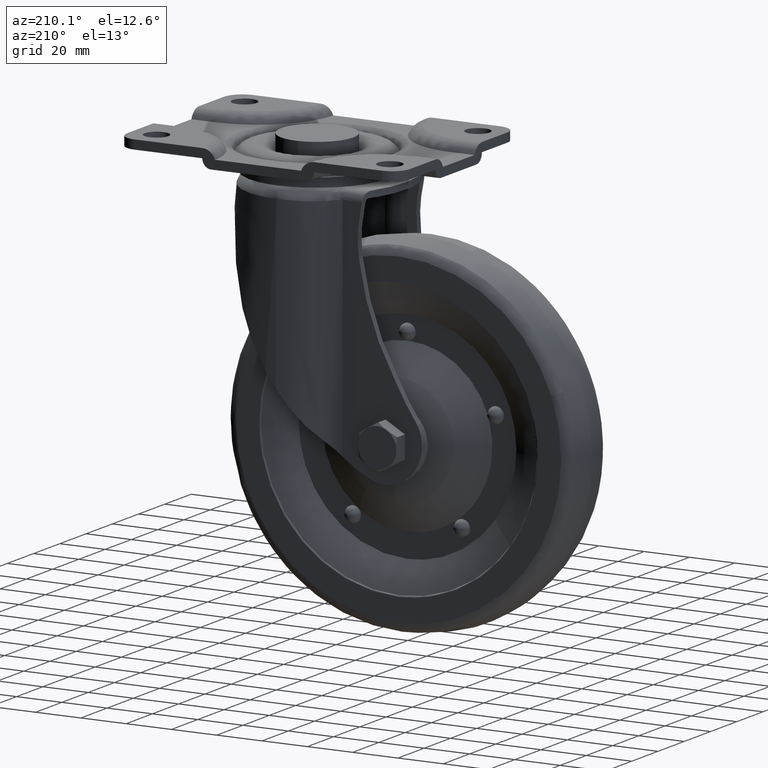
[diagram: clean part render]
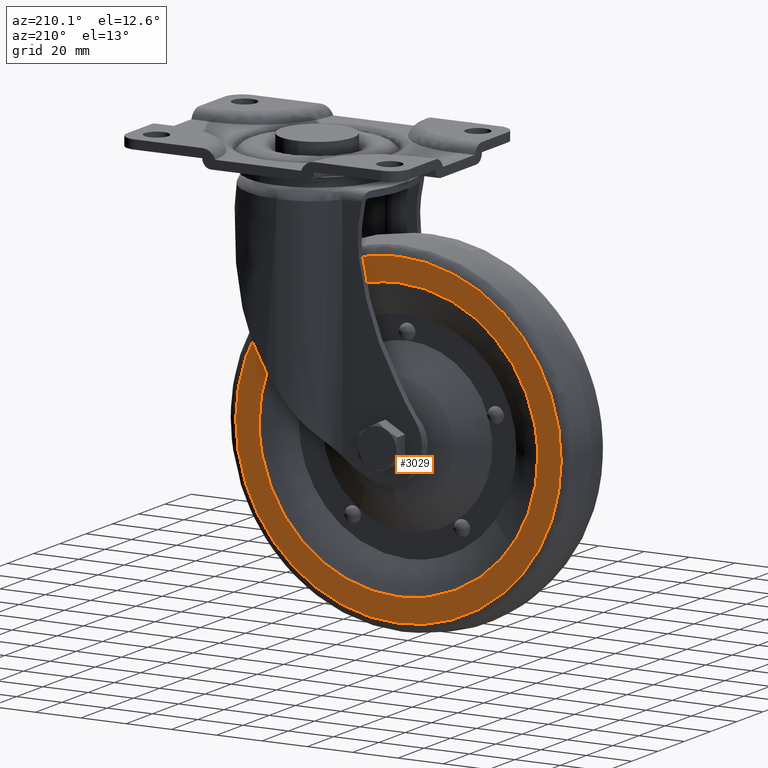
[diagram: same view with one face highlighted and labeled with its STEP entity id]
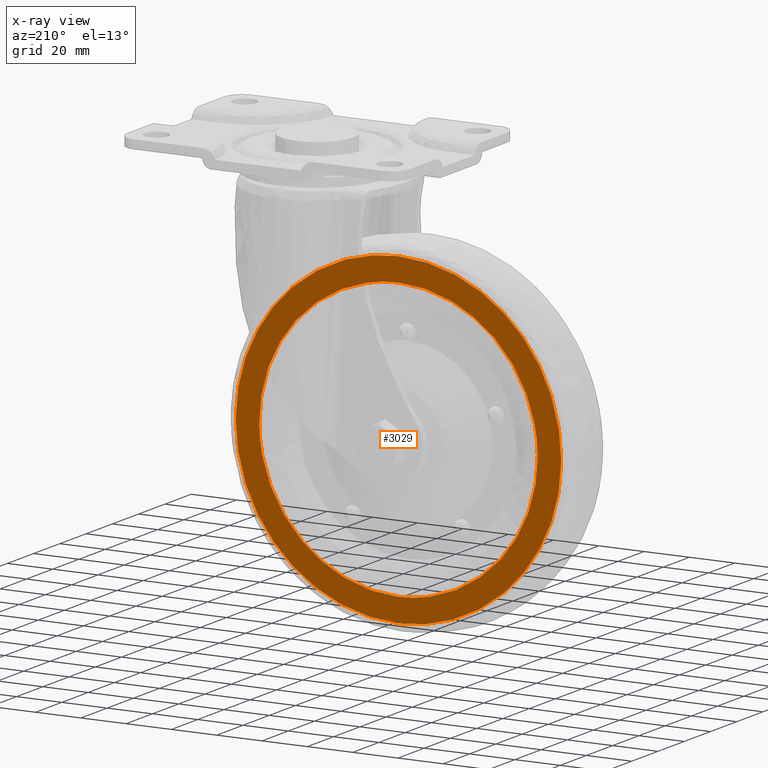
[diagram: x-ray of the same camera — body ghosted, the highlighted face saturated]
A machine part, auxiliary view. The second image highlights one B-rep face of the part: STEP entity #3029.
The next image is the same camera in x-ray: the body ghosted, the highlighted face saturated — about 0% of this face is hidden behind the body in this view.
In plain terms, the highlighted face is a freeform B-spline surface patch.
Its self-contained STEP definition (entity closure, byte-faithful):
#2828=CARTESIAN_POINT('',(17.495144199788200,14.0,-113.272811452859900));
#2829=VERTEX_POINT('',#2828);
#2843=CARTESIAN_POINT('',(-44.0,14.0,-174.0));
#2844=VERTEX_POINT('',#2843);
#2845=CARTESIAN_POINT('',(-44.0,14.0,-174.0));
#2846=CARTESIAN_POINT('',(16.731983679662374,14.000000000000002,-173.999999999882310));
#2847=CARTESIAN_POINT('',(17.495144199788196,13.999999999999996,-113.272811452859900));
#2855=(BOUNDED_CURVE()B_SPLINE_CURVE(2,(#2845,#2846,#2847),.UNSPECIFIED.,.F.,.U.)B_SPLINE_CURVE_WITH_KNOTS((3,3),(0.0,0.247784295920958),.UNSPECIFIED.)CURVE()GEOMETRIC_REPRESENTATION_ITEM()RATIONAL_B_SPLINE_CURVE((1.0,0.709702639985142,0.994854295642240))REPRESENTATION_ITEM(''));
#2856=EDGE_CURVE('',#2844,#2829,#2855,.T.);
#2858=CARTESIAN_POINT('',(-105.495144199788200,14.0,-111.727188547140100));
#2859=VERTEX_POINT('',#2858);
#2860=CARTESIAN_POINT('',(-105.495144199788230,14.000000000000005,-111.727188547140160));
#2861=CARTESIAN_POINT('',(-105.499999981315010,14.000000000000004,-112.113579018598940));
#2862=CARTESIAN_POINT('',(-105.499999981373900,14.0,-112.500000000234000));
#2863=CARTESIAN_POINT('',(-105.499999990745490,13.999999999999998,-174.000000000116300));
#2864=CARTESIAN_POINT('',(-44.0,14.0,-174.0));
#2872=(BOUNDED_CURVE()B_SPLINE_CURVE(2,(#2860,#2861,#2862,#2863,#2864),.UNSPECIFIED.,.F.,.U.)B_SPLINE_CURVE_WITH_KNOTS((3,2,3),(0.747784295920958,0.750000000000000,1.0),.UNSPECIFIED.)CURVE()GEOMETRIC_REPRESENTATION_ITEM()RATIONAL_B_SPLINE_CURVE((0.994854295642240,0.997404141201406,1.0,0.707106781186548,1.0))REPRESENTATION_ITEM(''));
#2873=EDGE_CURVE('',#2859,#2844,#2872,.T.);
#2916=CARTESIAN_POINT('',(-44.0,14.0,-51.000000000000007));
#2917=VERTEX_POINT('',#2916);
#2918=CARTESIAN_POINT('',(-44.0,14.0,-51.000000000000007));
#2919=CARTESIAN_POINT('',(-104.731983679662410,14.0,-51.000000000117751));
#2920=CARTESIAN_POINT('',(-105.495144199788230,14.000000000000005,-111.727188547140160));
#2928=(BOUNDED_CURVE()B_SPLINE_CURVE(2,(#2918,#2919,#2920),.UNSPECIFIED.,.F.,.U.)B_SPLINE_CURVE_WITH_KNOTS((3,3),(0.500000000000000,0.747784295920958),.UNSPECIFIED.)CURVE()GEOMETRIC_REPRESENTATION_ITEM()RATIONAL_B_SPLINE_CURVE((1.0,0.709702639985142,0.994854295642240))REPRESENTATION_ITEM(''));
#2929=EDGE_CURVE('',#2917,#2859,#2928,.T.);
#2931=CARTESIAN_POINT('',(17.495144199788196,13.999999999999996,-113.272811452859900));
#2932=CARTESIAN_POINT('',(17.499999981315050,14.000000000000005,-112.886420981401020));
#2933=CARTESIAN_POINT('',(17.499999981373929,14.0,-112.499999999765900));
#2934=CARTESIAN_POINT('',(17.499999990745483,14.000000000000002,-50.999999999883705));
#2935=CARTESIAN_POINT('',(-44.0,14.0,-51.000000000000007));
#2943=(BOUNDED_CURVE()B_SPLINE_CURVE(2,(#2931,#2932,#2933,#2934,#2935),.UNSPECIFIED.,.F.,.U.)B_SPLINE_CURVE_WITH_KNOTS((3,2,3),(0.247784295920958,0.250000000000000,0.500000000000000),.UNSPECIFIED.)CURVE()GEOMETRIC_REPRESENTATION_ITEM()RATIONAL_B_SPLINE_CURVE((0.994854295642240,0.997404141201405,1.0,0.707106781186548,1.0))REPRESENTATION_ITEM(''));
#2944=EDGE_CURVE('',#2829,#2917,#2943,.T.);
#2952=CARTESIAN_POINT('',(-122.980905380348500,14.0,-191.519897093825900));
#2953=CARTESIAN_POINT('',(-122.980905380348500,14.0,-33.480099052225967));
#2954=CARTESIAN_POINT('',(34.980909232240109,14.0,-191.519897093825900));
#2955=CARTESIAN_POINT('',(34.980909232240109,14.0,-33.480099052225981));
#2956=B_SPLINE_SURFACE_WITH_KNOTS('',1,1,((#2952,#2954),(#2953,#2955)),.UNSPECIFIED.,.F.,.F.,.U.,(2,2),(2,2),(0.0,158.039798041599910),(0.0,157.961814612588600),.UNSPECIFIED.);
#2957=CARTESIAN_POINT('',(-111.441270215077790,14.0,-87.739886874917715));
#2958=VERTEX_POINT('',#2957);
#2959=CARTESIAN_POINT('',(-44.0,14.0,-184.342801502242390));
#2960=VERTEX_POINT('',#2959);
#2961=CARTESIAN_POINT('',(-111.441270215077760,13.999999999999995,-87.739886874917715));
#2962=CARTESIAN_POINT('',(-115.842801517558390,14.000000000000004,-99.728719902807114));
#2963=CARTESIAN_POINT('',(-115.842801516107000,14.0,-112.499999994909800));
#2964=CARTESIAN_POINT('',(-115.842801507942350,13.999999999999998,-184.342801500149790));
#2965=CARTESIAN_POINT('',(-44.0,14.0,-184.342801502242390));
#2973=(BOUNDED_CURVE()B_SPLINE_CURVE(2,(#2961,#2962,#2963,#2964,#2965),.UNSPECIFIED.,.F.,.U.)B_SPLINE_CURVE_WITH_KNOTS((3,2,3),(0.691460350202081,0.750000000000000,1.0),.UNSPECIFIED.)CURVE()GEOMETRIC_REPRESENTATION_ITEM()RATIONAL_B_SPLINE_CURVE((0.894951884912775,0.931416534169901,1.0,0.707106781186548,1.0))REPRESENTATION_ITEM(''));
#2974=EDGE_CURVE('',#2958,#2960,#2973,.T.);
#2975=ORIENTED_EDGE('',*,*,#2974,.F.);
#2976=CARTESIAN_POINT('',(-44.0,14.0,-40.657198497757612));
#2977=VERTEX_POINT('',#2976);
#2978=CARTESIAN_POINT('',(-44.0,14.0,-40.657198497757612));
#2979=CARTESIAN_POINT('',(-94.155523854833177,13.999999999999998,-40.657198494760088));
#2980=CARTESIAN_POINT('',(-111.441270215077760,13.999999999999995,-87.739886874917715));
#2988=(BOUNDED_CURVE()B_SPLINE_CURVE(2,(#2978,#2979,#2980),.UNSPECIFIED.,.F.,.U.)B_SPLINE_CURVE_WITH_KNOTS((3,3),(0.500000000000000,0.691460350202081),.UNSPECIFIED.)CURVE()GEOMETRIC_REPRESENTATION_ITEM()RATIONAL_B_SPLINE_CURVE((1.0,0.775690247016646,0.894951884912775))REPRESENTATION_ITEM(''));
#2989=EDGE_CURVE('',#2977,#2958,#2988,.T.);
#2990=ORIENTED_EDGE('',*,*,#2989,.F.);
#2991=CARTESIAN_POINT('',(23.441270215077768,14.0,-137.260113125082310));
#2992=VERTEX_POINT('',#2991);
#2993=CARTESIAN_POINT('',(23.441270215077761,13.999999999999996,-137.260113125082230));
#2994=CARTESIAN_POINT('',(27.842801517558343,13.999999999999991,-125.271280097192870));
#2995=CARTESIAN_POINT('',(27.842801516106949,14.0,-112.500000005090200));
#2996=CARTESIAN_POINT('',(27.842801507942337,13.999999999999998,-40.657198499850267));
#2997=CARTESIAN_POINT('',(-44.0,14.0,-40.657198497757612));
#3005=(BOUNDED_CURVE()B_SPLINE_CURVE(2,(#2993,#2994,#2995,#2996,#2997),.UNSPECIFIED.,.F.,.U.)B_SPLINE_CURVE_WITH_KNOTS((3,2,3),(0.191460350202081,0.250000000000000,0.500000000000000),.UNSPECIFIED.)CURVE()GEOMETRIC_REPRESENTATION_ITEM()RATIONAL_B_SPLINE_CURVE((0.894951884912774,0.931416534169901,1.0,0.707106781186548,1.0))REPRESENTATION_ITEM(''));
#3006=EDGE_CURVE('',#2992,#2977,#3005,.T.);
#3007=ORIENTED_EDGE('',*,*,#3006,.F.);
#3008=CARTESIAN_POINT('',(-44.0,14.0,-184.342801502242390));
#3009=CARTESIAN_POINT('',(6.155523854833199,14.0,-184.342801505239980));
#3010=CARTESIAN_POINT('',(23.441270215077761,13.999999999999996,-137.260113125082230));
#3018=(BOUNDED_CURVE()B_SPLINE_CURVE(2,(#3008,#3009,#3010),.UNSPECIFIED.,.F.,.U.)B_SPLINE_CURVE_WITH_KNOTS((3,3),(0.0,0.191460350202081),.UNSPECIFIED.)CURVE()GEOMETRIC_REPRESENTATION_ITEM()RATIONAL_B_SPLINE_CURVE((1.0,0.775690247016646,0.894951884912774))REPRESENTATION_ITEM(''));
#3019=EDGE_CURVE('',#2960,#2992,#3018,.T.);
#3020=ORIENTED_EDGE('',*,*,#3019,.F.);
#3021=EDGE_LOOP('',(#2975,#2990,#3007,#3020));
#3022=FACE_OUTER_BOUND('',#3021,.T.);
#3023=ORIENTED_EDGE('',*,*,#2856,.T.);
#3024=ORIENTED_EDGE('',*,*,#2944,.T.);
#3025=ORIENTED_EDGE('',*,*,#2929,.T.);
#3026=ORIENTED_EDGE('',*,*,#2873,.T.);
#3027=EDGE_LOOP('',(#3023,#3024,#3025,#3026));
#3028=FACE_BOUND('',#3027,.T.);
#3029=ADVANCED_FACE('',(#3022,#3028),#2956,.T.);